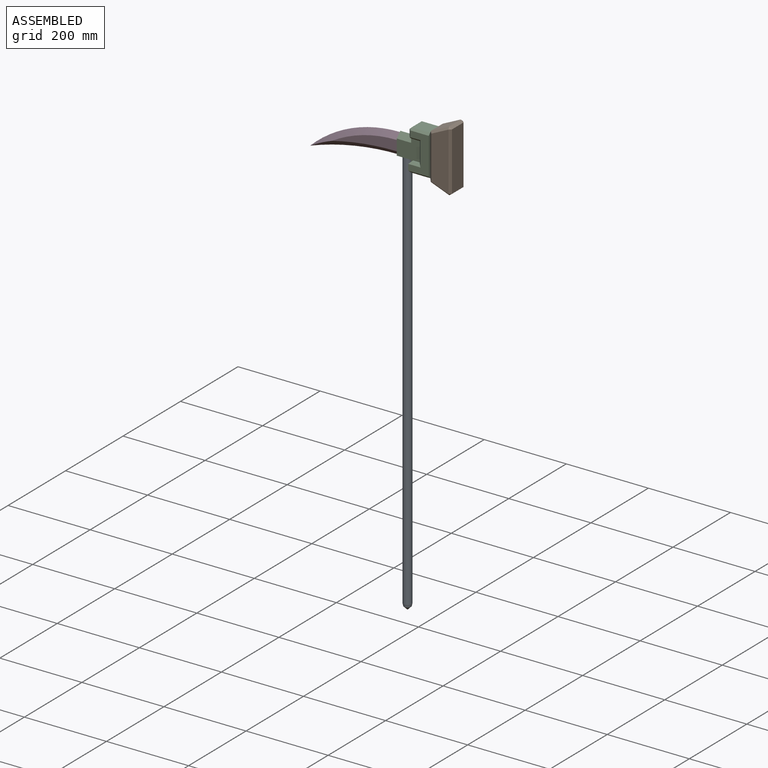
[diagram: assembled view]
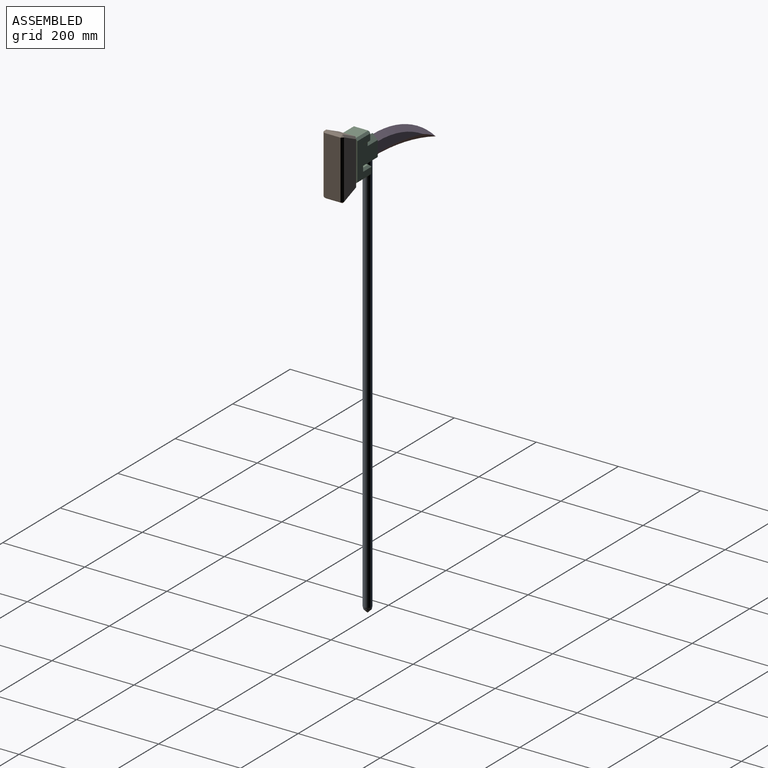
[diagram: assembled view, second angle]
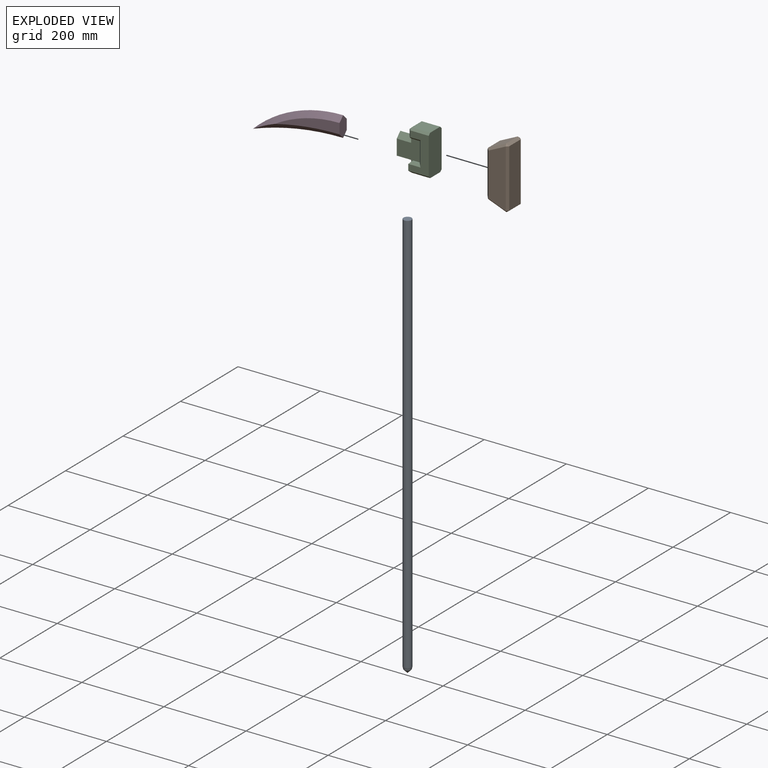
[diagram: exploded view]
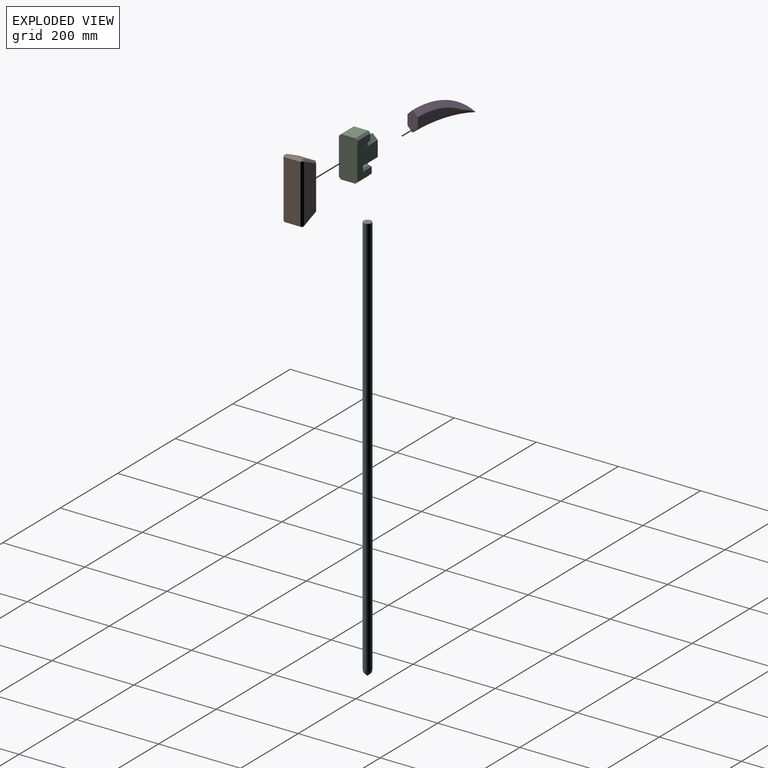
[diagram: exploded view, second angle]
ASSEMBLY  parts=4 mates=3
PART A: 4 faces, bbox 20x20x1000 mm
  f0: cylinder r=10mm len=985mm, axis (0,0,-1), area 61889.4mm2, adj f1,f3
  f1: plane 20x20mm, normal (0,0,1), area 314.2mm2, adj f0
  f2: cone r=10mm half-angle=45deg, axis (0,0,1), area 327.5mm2, adj f3
  f3: cone r=10mm half-angle=12.4deg, axis (0,0,1), area 383.5mm2, adj f0,f2
PART B: 22 faces, bbox 151.2x50x55 mm
  f0: plane 99.55x34.16mm, normal (0,0,-1), area 3400.1mm2, adj f6,f7,f8,f9
  f1: plane 43.34x40mm, normal (0.9,0,-0.43), area 1920.2mm2, adj f6,f12,f17,f18
  f2: plane 142.04x40mm, normal (0,0,1), area 5681.6mm2, adj f11,f16,f17,f21
  f3: plane 43.12x40mm, normal (-0.93,0,-0.36), area 1846.4mm2, adj f9,f10,f15,f16
  f4: plane 142.04x42.08mm, normal (0,-1,0), area 5216.6mm2, adj f7,f15,f18,f21
  f5: plane 142.04x42.08mm, normal (0,1,0), area 5216.6mm2, adj f8,f10,f11,f12
  f6: plane 41.59x7.15mm, normal (0.53,0,-0.85), area 324.6mm2, adj f0,f1,f7,f8,f12,f18
  f7: plane 111.26x7.92mm, normal (0,-0.71,-0.71), area 1199.1mm2, adj f0,f4,f6,f9,f15,f18
  f8: plane 111.26x7.92mm, normal (0,0.71,-0.71), area 1199.1mm2, adj f0,f5,f6,f9,f10,f12
  f9: plane 42.17x7.4mm, normal (-0.57,0,-0.82), area 348.5mm2, adj f0,f3,f7,f8,f10,f15
  f10: plane 45.99x20.74mm, normal (-0.66,0.71,-0.25), area 328.9mm2, adj f3,f5,f8,f9,f13
  f11: plane 142.04x5mm, normal (0,0.71,0.71), area 1004.4mm2, adj f2,f5,f13,f14
  f12: plane 46.28x24.57mm, normal (0.64,0.71,-0.3), area 339.8mm2, adj f1,f5,f6,f8,f14
  f13: plane 6.78x5mm, normal (-0.72,0.49,0.49), area 23.7mm2, adj f10,f11,f16
  f14: plane 7.15x5mm, normal (0.75,0.47,0.47), area 24mm2, adj f11,f12,f17
  f15: plane 45.99x20.74mm, normal (-0.66,-0.71,-0.25), area 328.9mm2, adj f3,f4,f7,f9,f19
  f16: plane 40x6.78mm, normal (-0.82,0,0.57), area 329.5mm2, adj f2,f3,f13,f19
  f17: plane 40x7.15mm, normal (0.85,0,0.53), area 338.3mm2, adj f1,f2,f14,f20
  f18: plane 46.28x24.57mm, normal (0.64,-0.71,-0.3), area 339.8mm2, adj f1,f4,f6,f7,f20
  f19: plane 6.78x5mm, normal (-0.72,-0.49,0.49), area 23.7mm2, adj f15,f16,f21
  f20: plane 7.15x5mm, normal (0.75,-0.47,0.47), area 24mm2, adj f17,f18,f21
  f21: plane 142.04x5mm, normal (0,-0.71,0.71), area 1004.4mm2, adj f2,f4,f19,f20
PART C: 39 faces, bbox 100x45x85 mm
  f0: plane 20x5mm, normal (1,0,0), area 100mm2, adj f1,f16,f24,f26
  f1: plane 50x5mm, normal (0,0,-1), area 250mm2, adj f0,f2,f16,f25
  f2: plane 20x5mm, normal (-1,0,0), area 100mm2, adj f1,f16,f22,f23
  f3: plane 100x45mm, normal (0,0,1), area 4450mm2, adj f4,f10,f11,f12,f27,f29,f30,f33
  f4: plane 45x35mm, normal (-1,0,0), area 1575mm2, adj f3,f27,f28,f29
  f5: plane 45x20mm, normal (0,0,-1), area 800mm2, adj f11,f12,f13,f15,f16,f19,f24,f28
  f6: plane 20x5mm, normal (1,0,0), area 100mm2, adj f7,f15,f19,f21
  f7: plane 50x5mm, normal (0,0,-1), area 250mm2, adj f6,f8,f15,f20
  f8: plane 20x5mm, normal (-1,0,0), area 100mm2, adj f7,f15,f17,f18
  f9: plane 35x32.5mm, normal (0,0,-1), area 806.3mm2, adj f15,f16,f17,f22,f31,f34,f36,f37
  f10: plane 45x35mm, normal (1,0,0), area 1575mm2, adj f3,f30,f33,f34
  f11: plane 90x50mm, normal (0,-1,0), area 2625mm2, adj f3,f5,f18,f20,f21,f27,f33,f36
  f12: plane 90x50mm, normal (0,1,0), area 2625mm2, adj f3,f5,f23,f25,f26,f29,f30,f31
  f13: plane 35x25mm, normal (-1,0,0), area 875mm2, adj f5,f14,f15,f16
  f14: plane 50x25mm, normal (0,0,-1), area 1093.8mm2, adj f13,f15,f16,f37,f38
  f15: plane 60x60mm, normal (0,-1,0), area 2587.5mm2, adj f5,f6,f7,f8,f9,f13,f14,f17
  f16: plane 60x60mm, normal (0,1,0), area 2587.5mm2, adj f0,f1,f2,f5,f9,f13,f14,f22
  f17: plane 7.5x5mm, normal (-0.71,0,-0.71), area 44.2mm2, adj f8,f9,f15,f18,f36
  f18: plane 27.5x5mm, normal (-0.71,-0.71,0), area 167.9mm2, adj f8,f11,f17,f20,f36
  f19: plane 10x5mm, normal (0.71,0,-0.71), area 53mm2, adj f5,f6,f15,f21
  f20: plane 60x5mm, normal (0,-0.71,-0.71), area 388.9mm2, adj f7,f11,f18,f21
  f21: plane 30x5mm, normal (0.71,-0.71,0), area 176.8mm2, adj f6,f11,f19,f20
  f22: plane 7.5x5mm, normal (-0.71,0,-0.71), area 44.2mm2, adj f2,f9,f16,f23,f31
  f23: plane 27.5x5mm, normal (-0.71,0.71,0), area 167.9mm2, adj f2,f12,f22,f25,f31
  f24: plane 10x5mm, normal (0.71,0,-0.71), area 53mm2, adj f0,f5,f16,f26
  f25: plane 60x5mm, normal (0,0.71,-0.71), area 388.9mm2, adj f1,f12,f23,f26
  f26: plane 30x5mm, normal (0.71,0.71,0), area 176.8mm2, adj f0,f12,f24,f25
  f27: plane 50x5mm, normal (-0.71,-0.71,0), area 335.9mm2, adj f3,f4,f11,f28
  f28: plane 45x5mm, normal (-0.71,0,-0.71), area 282.8mm2, adj f4,f5,f27,f29
  f29: plane 50x5mm, normal (-0.71,0.71,0), area 335.9mm2, adj f3,f4,f12,f28
  f30: plane 45x5mm, normal (0.71,0.71,0), area 318.2mm2, adj f3,f10,f12,f32
  f31: plane 17.5x5mm, normal (0,0.71,-0.71), area 114.9mm2, adj f9,f12,f22,f23,f32
  f32: plane 5x5mm, normal (0.58,0.58,-0.58), area 21.7mm2, adj f30,f31,f34
  f33: plane 45x5mm, normal (0.71,-0.71,0), area 318.2mm2, adj f3,f10,f11,f35
  f34: plane 35x5mm, normal (0.71,0,-0.71), area 247.5mm2, adj f9,f10,f32,f35
  f35: plane 5x5mm, normal (0.58,-0.58,-0.58), area 21.7mm2, adj f33,f34,f36
  f36: plane 17.5x5mm, normal (0,-0.71,-0.71), area 114.9mm2, adj f9,f11,f17,f18,f35
  f37: plane 35x12.5mm, normal (0.71,-0.71,0), area 618.7mm2, adj f9,f14,f15,f38
  f38: plane 35x12.5mm, normal (0.71,0.71,0), area 618.7mm2, adj f9,f14,f16,f37
PART D: 7 faces, bbox 97.5x25x223.8 mm
  f0: plane 50x25mm, normal (0,0,1), area 937.5mm2, adj f1,f2,f3,f4,f5,f6
  f1: plane 157.95x44.24mm, normal (0,-1,0), area 2698.8mm2, adj f0,f3,f4
  f2: plane 157.95x44.24mm, normal (0,1,0), area 2698.8mm2, adj f0,f5,f6
  f3: cone r=304.08mm half-angle=45deg, axis (0,1,0), area 3640.8mm2, adj f0,f1,f4,f5
  f4: cone r=645.43mm half-angle=45deg, axis (0,-1,0), area 3424.4mm2, adj f0,f1,f3,f6
  f5: cone r=316.58mm half-angle=45deg, axis (0,-1,0), area 3640.8mm2, adj f0,f2,f3,f6
  f6: cone r=657.93mm half-angle=45deg, axis (0,1,0), area 3424.4mm2, adj f0,f2,f4,f5
PLACE A t=(-202.03,-76.28,80.65)mm
PLACE B rot(axis=(0.71,0,0.71),180deg) t=(-259.29,-21.16,580.42)mm
PLACE C rot(axis=(0.71,0,0.71),180deg) t=(-259.29,-21.16,580.65)mm
PLACE D rot(axis=(0.71,0,0.71),180deg) t=(-259.29,-21.16,577.67)mm
MATE slider C.f13 <-> A.f0  axis (0,0,-1) through (-271.79,-21.16,580.65)mm
MATE fastened B.f0 <-> C.f3  axis (-1,0,0) through (-204.29,-21.16,605.65)mm
MATE fastened D.f0 <-> C.f14  axis (1,0,0) through (-289.29,-21.16,602.67)mm
